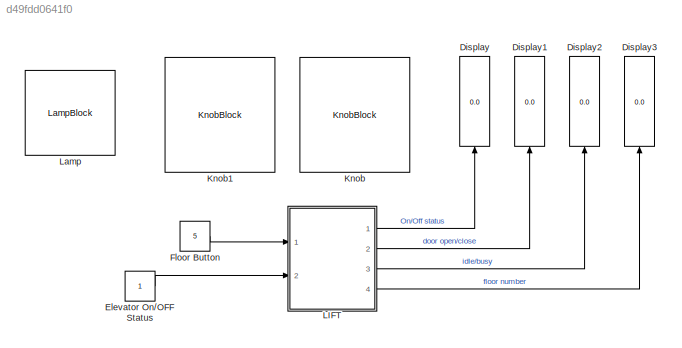
MODEL slx_d49fdd0641f0
KIND model
CONFIG AbsTol = auto
CONFIG EnableMultiTasking = off
CONFIG FixedStep = auto
CONFIG MaxStep = auto
CONFIG MinStep = auto
CONFIG RelTol = 1e-3
CONFIG SampleTimeConstraint = Unconstrained
CONFIG SolverName = VariableStepAuto
CONFIG StartTime = 0.0
CONFIG StopTime = 10.0
BLOCK [Display] Display
  Decimation = 1
  NameLocation = right
  Ports = [1]
BLOCK [Display] Display1
  Decimation = 1
  NameLocation = right
  Ports = [1]
BLOCK [Display] Display2
  Decimation = 1
  NameLocation = right
  Ports = [1]
BLOCK [Display] Display3
  Decimation = 1
  NameLocation = right
  Ports = [1]
BLOCK [Constant] Elevator On//OFF Status
BLOCK [Constant] Floor Button
  Value = 5
BLOCK [KnobBlock] Knob
  ScaleMax = 5
  TickInterval = 1
BLOCK [KnobBlock] Knob1
  ScaleMax = 1
  TickInterval = 0.5
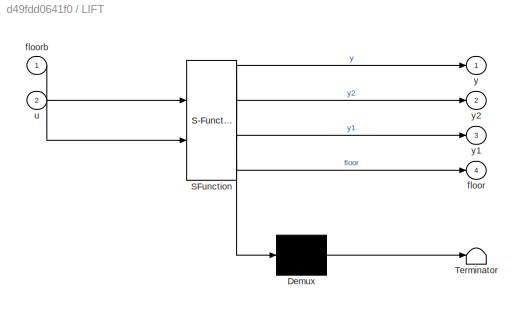
BLOCK [SubSystem] LIFT
  ErrorFcn = Stateflow.Translate.translate
  PermitHierarchicalResolution = ExplicitOnly
  Ports = [2, 4]
  RequestExecContextInheritance = off
  SFBlockType = Chart
  TreatAsAtomicUnit = on
BLOCK [Demux] LIFT/ Demux 
  Outputs = 1
  Ports = [1, 1]
BLOCK [S-Function] LIFT/ SFunction 
  EnableBusSupport = on
  FunctionName = sf_sfun
  PortCounts = [2 5]
  Ports = [2, 5]
  SFcnIsStateOwnerBlock = off
  SFunctionDeploymentMode = off
  Tag = Stateflow S-Function 3
BLOCK [Terminator] LIFT/ Terminator 
BLOCK [Outport] LIFT/floor
  Port = 4
BLOCK [Inport] LIFT/floorb
BLOCK [Inport] LIFT/u
  Port = 2
BLOCK [Outport] LIFT/y
BLOCK [Outport] LIFT/y1
  Port = 3
BLOCK [Outport] LIFT/y2
  Port = 2
BLOCK [LampBlock] Lamp
LINE Elevator On//OFF Status:1 -> LIFT:2
LINE Floor Button:1 -> LIFT:1
LINE LIFT:1 -> Display:1
LINE LIFT:2 -> Display1:1
LINE LIFT:3 -> Display2:1
LINE LIFT:4 -> Display3:1
CHART LIFT states=12 transitions=16
  STATE_LABEL 'Elevator_on\nentry: y=1;\n'
  STATE_LABEL '<!DOCTYPE HTML PUBLIC "-//W3C//DTD HTML 4.0//EN" "http://www.w3.org/TR/REC-html40/strict.dtd">\n<html><head><meta name="qrichtext" content="1" /><style type="text/css">\np, li { white-space: pre-wrap; }\n</style></head><body align="left" style=" font-family:\'MS Shell Dlg 2\'; font-size:8.25pt; font-weight:400; font-style:normal;">\n<p align="left" style=" margin-top:0px; margin-bottom:0px; margin-left:...<+303ch>'
  STATE_LABEL 'DOWN\nentry:\nfloor=floor-1;'
  STATE_LABEL 'Delay1\nentry:\nfloor=floor-1;'
  STATE_LABEL 'Idle_state\nentry: y1=0;'
  STATE_LABEL 'UP\nentry:\nfloor=floor+1;'
  STATE_LABEL 'Delay\nentry:\nfloor=floor+1;'
  STATE_LABEL 'Door_open1\nentry:\ny2=1;'
  STATE_LABEL 'Door_close1\nentry:\ny2=0;'
  STATE_LABEL 'Door_open\nentry:\ny2=1;'
  STATE_LABEL 'Door_close\nentry:\ny2=0;'
  STATE_LABEL '[floorb<floor]'
  STATE_LABEL '[floorb<floor]'
  STATE_LABEL '[floorb>floor]{y1=1}'
  STATE_LABEL '[floorb==floor]'
  STATE_LABEL '[floor==floorb]'
  STATE_LABEL '[floorb>floor]'
  STATE_LABEL '[floorb>floor]'
  STATE_LABEL '[after(5,sec)]'
  STATE_LABEL '[floorb==floor]'
  STATE_LABEL '[floor==floorb]'
  STATE_LABEL '[after(5,sec)]'
  STATE_LABEL '<!DOCTYPE HTML PUBLIC "-//W3C//DTD HTML 4.0//EN" "http://www.w3.org/TR/REC-html40/strict.dtd">\n<html><head><meta name="qrichtext" content="1" /><style type="text/css">\np, li { white-space: pre-wrap; }\n</style></head><body align="left" style=" font-family:\'MS Shell Dlg 2\'; font-size:8.25pt; font-weight:400; font-style:normal;">\n<p align="left" style=" margin-top:0px; margin-bottom:0px; margin-left:...<+303ch>'
  STATE_LABEL 'DOWN\nentry:\nfloor=floor-1;'
  STATE_LABEL 'Delay1\nentry:\nfloor=floor-1;'
  STATE_LABEL 'Idle_state\nentry: y1=0;'
  STATE_LABEL 'UP\nentry:\nfloor=floor+1;'
  STATE_LABEL 'Delay\nentry:\nfloor=floor+1;'
  STATE_LABEL 'Door_open1\nentry:\ny2=1;'
  STATE_LABEL 'Door_close1\nentry:\ny2=0;'
  STATE_LABEL 'Door_open\nentry:\ny2=1;'
  STATE_LABEL 'Door_close\nentry:\ny2=0;'
  STATE_LABEL 'Elevator_off\nentry: y=0;'
CHART  states=0 transitions=0
